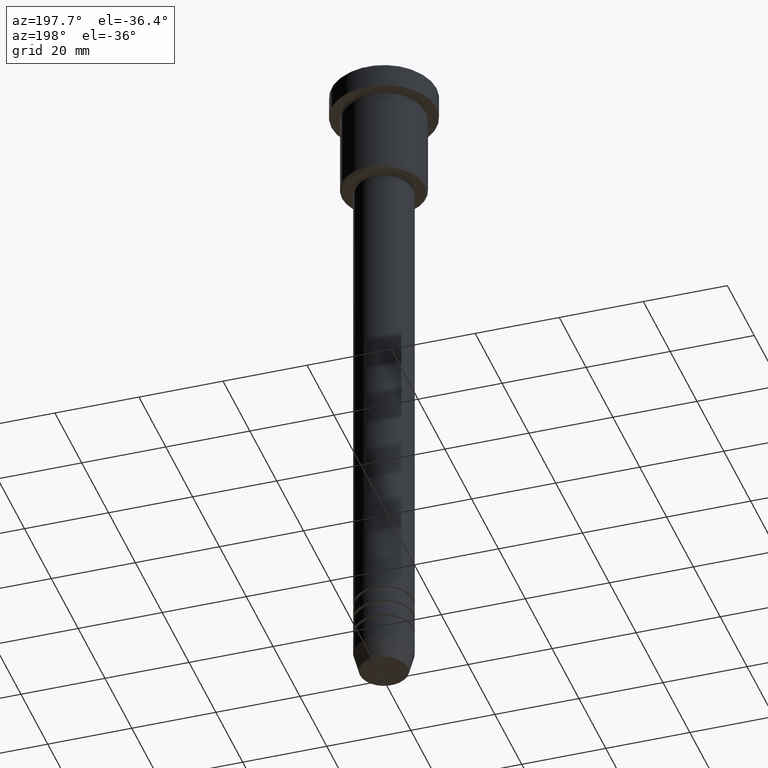
[diagram: clean part render]
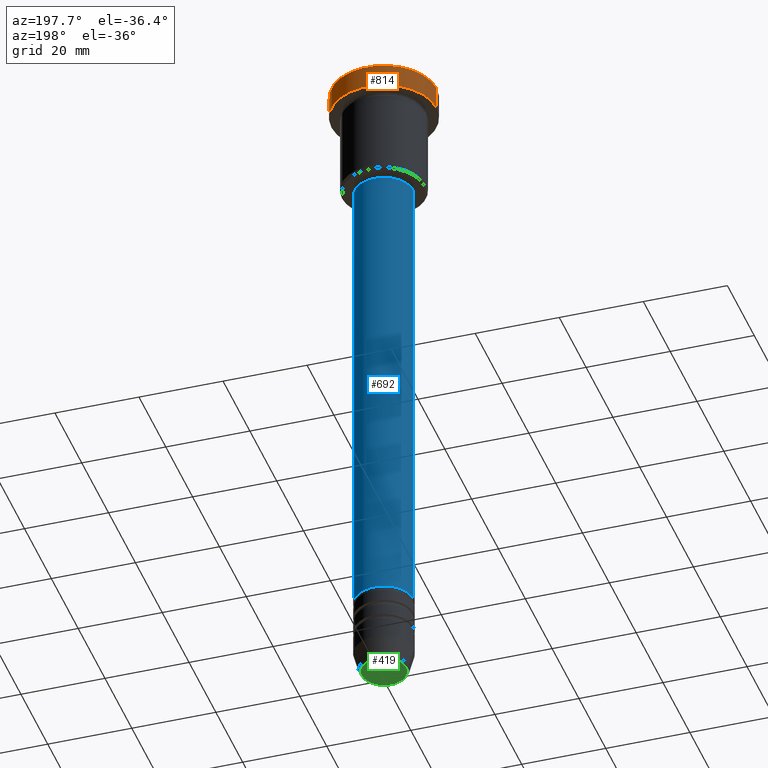
[diagram: same view with three faces highlighted in distinct colors, each labeled with its STEP entity id]
A machine part, auxiliary view with three faces highlighted in distinct colors.
Their STEP definitions:

[orange] entity #814 — the highlighted cylindrical surface (partial cylindrical patch) has radius 12.5 mm, axis along (-0, -0, 1).
#6 = VERTEX_POINT ( 'NONE', #38 ) ;
#33 = VERTEX_POINT ( 'NONE', #381 ) ;
#38 = CARTESIAN_POINT ( 'NONE',  ( -12.50000000000000000, 1.530808498934191521E-15, -0.4999999999999917843 ) ) ;
#48 = CARTESIAN_POINT ( 'NONE',  ( -12.50000000000000000, 1.530808498934191521E-15, 0.000000000000000000 ) ) ;
#209 = DIRECTION ( 'NONE',  ( 1.000000000000000000, 0.000000000000000000, 0.000000000000000000 ) ) ;
#212 = ORIENTED_EDGE ( 'NONE', *, *, #711, .T. ) ;
#236 = DIRECTION ( 'NONE',  ( -0.000000000000000000, -0.000000000000000000, 1.000000000000000000 ) ) ;
#249 = CARTESIAN_POINT ( 'NONE',  ( 12.50000000000000000, 0.000000000000000000, 0.000000000000000000 ) ) ;
#257 = DIRECTION ( 'NONE',  ( -0.000000000000000000, -0.000000000000000000, 1.000000000000000000 ) ) ;
#320 = EDGE_CURVE ( 'NONE', #602, #33, #736, .T. ) ;
#381 = CARTESIAN_POINT ( 'NONE',  ( -12.50000000000000000, 1.530808498934191521E-15, -5.999999999999996447 ) ) ;
#390 = EDGE_CURVE ( 'NONE', #602, #641, #915, .T. ) ;
#463 = DIRECTION ( 'NONE',  ( -0.000000000000000000, -0.000000000000000000, 1.000000000000000000 ) ) ;
#464 = CARTESIAN_POINT ( 'NONE',  ( 0.000000000000000000, 0.000000000000000000, 0.000000000000000000 ) ) ;
#545 = FACE_OUTER_BOUND ( 'NONE', #574, .T. ) ;
#561 = DIRECTION ( 'NONE',  ( -0.000000000000000000, -0.000000000000000000, 1.000000000000000000 ) ) ;
#574 = EDGE_LOOP ( 'NONE', ( #1091, #689, #212, #1068 ) ) ;
#602 = VERTEX_POINT ( 'NONE', #944 ) ;
#641 = VERTEX_POINT ( 'NONE', #1051 ) ;
#689 = ORIENTED_EDGE ( 'NONE', *, *, #1073, .T. ) ;
#697 = AXIS2_PLACEMENT_3D ( 'NONE', #464, #561, #904 ) ;
#711 = EDGE_CURVE ( 'NONE', #6, #641, #1097, .T. ) ;
#723 = DIRECTION ( 'NONE',  ( 1.000000000000000000, 0.000000000000000000, 0.000000000000000000 ) ) ;
#736 = CIRCLE ( 'NONE', #975, 12.50000000000000000 ) ;
#754 = VECTOR ( 'NONE', #463, 1000.000000000000000 ) ;
#814 = ADVANCED_FACE ( 'NONE', ( #545 ), #1105, .T. ) ;
#851 = CARTESIAN_POINT ( 'NONE',  ( 0.000000000000000000, 0.000000000000000000, -0.4999999999999917843 ) ) ;
#904 = DIRECTION ( 'NONE',  ( 1.000000000000000000, 0.000000000000000000, 0.000000000000000000 ) ) ;
#908 = CARTESIAN_POINT ( 'NONE',  ( 0.000000000000000000, 0.000000000000000000, -5.999999999999996447 ) ) ;
#915 = LINE ( 'NONE', #249, #754 ) ;
#944 = CARTESIAN_POINT ( 'NONE',  ( 12.50000000000000000, 0.000000000000000000, -5.999999999999996447 ) ) ;
#975 = AXIS2_PLACEMENT_3D ( 'NONE', #908, #257, #723 ) ;
#1051 = CARTESIAN_POINT ( 'NONE',  ( 12.50000000000000000, 0.000000000000000000, -0.4999999999999917843 ) ) ;
#1052 = AXIS2_PLACEMENT_3D ( 'NONE', #851, #1156, #209 ) ;
#1068 = ORIENTED_EDGE ( 'NONE', *, *, #390, .F. ) ;
#1073 = EDGE_CURVE ( 'NONE', #33, #6, #1164, .T. ) ;
#1091 = ORIENTED_EDGE ( 'NONE', *, *, #320, .T. ) ;
#1097 = CIRCLE ( 'NONE', #1052, 12.50000000000000000 ) ;
#1105 = CYLINDRICAL_SURFACE ( 'NONE', #697, 12.50000000000000000 ) ;
#1156 = DIRECTION ( 'NONE',  ( 0.000000000000000000, 0.000000000000000000, -1.000000000000000000 ) ) ;
#1164 = LINE ( 'NONE', #48, #1174 ) ;
#1174 = VECTOR ( 'NONE', #236, 1000.000000000000000 ) ;

[blue] entity #692 — the highlighted cylindrical surface (edge-blend (fillet) strip) has radius 7 mm, axis along (-0, -0, 1).
#89 = DIRECTION ( 'NONE',  ( -0.000000000000000000, -0.000000000000000000, 1.000000000000000000 ) ) ;
#91 = ORIENTED_EDGE ( 'NONE', *, *, #1090, .T. ) ;
#137 = CARTESIAN_POINT ( 'NONE',  ( 7.000000000000000888, 0.000000000000000000, -142.9999999999999147 ) ) ;
#149 = EDGE_CURVE ( 'NONE', #1037, #727, #1145, .T. ) ;
#177 = VECTOR ( 'NONE', #494, 1000.000000000000000 ) ;
#224 = ORIENTED_EDGE ( 'NONE', *, *, #149, .F. ) ;
#233 = DIRECTION ( 'NONE',  ( 1.000000000000000000, 0.000000000000000000, 0.000000000000000000 ) ) ;
#243 = CIRCLE ( 'NONE', #920, 7.000000000000000888 ) ;
#244 = CARTESIAN_POINT ( 'NONE',  ( 0.000000000000000000, 0.000000000000000000, -28.00000000000001776 ) ) ;
#255 = AXIS2_PLACEMENT_3D ( 'NONE', #969, #1153, #964 ) ;
#307 = CYLINDRICAL_SURFACE ( 'NONE', #598, 7.000000000000000888 ) ;
#365 = VECTOR ( 'NONE', #89, 1000.000000000000000 ) ;
#385 = VERTEX_POINT ( 'NONE', #642 ) ;
#494 = DIRECTION ( 'NONE',  ( -0.000000000000000000, -0.000000000000000000, 1.000000000000000000 ) ) ;
#598 = AXIS2_PLACEMENT_3D ( 'NONE', #1040, #1031, #233 ) ;
#599 = DIRECTION ( 'NONE',  ( -0.000000000000000000, -0.000000000000000000, 1.000000000000000000 ) ) ;
#619 = DIRECTION ( 'NONE',  ( 1.000000000000000000, 0.000000000000000000, 0.000000000000000000 ) ) ;
#642 = CARTESIAN_POINT ( 'NONE',  ( -7.000000000000000888, 8.572527594031474176E-16, -28.00000000000001776 ) ) ;
#666 = CARTESIAN_POINT ( 'NONE',  ( -7.000000000000000888, 8.572527594031474176E-16, -142.9999999999999147 ) ) ;
#677 = CARTESIAN_POINT ( 'NONE',  ( 7.000000000000000888, 0.000000000000000000, -28.00000000000001776 ) ) ;
#692 = ADVANCED_FACE ( 'NONE', ( #700 ), #307, .T. ) ;
#700 = FACE_OUTER_BOUND ( 'NONE', #907, .T. ) ;
#727 = VERTEX_POINT ( 'NONE', #677 ) ;
#775 = CIRCLE ( 'NONE', #255, 7.000000000000000888 ) ;
#785 = EDGE_CURVE ( 'NONE', #1007, #385, #812, .T. ) ;
#793 = CARTESIAN_POINT ( 'NONE',  ( 7.000000000000000888, 0.000000000000000000, 0.000000000000000000 ) ) ;
#809 = ORIENTED_EDGE ( 'NONE', *, *, #1159, .F. ) ;
#812 = LINE ( 'NONE', #1012, #365 ) ;
#823 = ORIENTED_EDGE ( 'NONE', *, *, #785, .T. ) ;
#907 = EDGE_LOOP ( 'NONE', ( #91, #823, #809, #224 ) ) ;
#920 = AXIS2_PLACEMENT_3D ( 'NONE', #244, #599, #619 ) ;
#964 = DIRECTION ( 'NONE',  ( 1.000000000000000000, 0.000000000000000000, 0.000000000000000000 ) ) ;
#969 = CARTESIAN_POINT ( 'NONE',  ( 0.000000000000000000, 0.000000000000000000, -142.9999999999999147 ) ) ;
#1007 = VERTEX_POINT ( 'NONE', #666 ) ;
#1012 = CARTESIAN_POINT ( 'NONE',  ( -7.000000000000000888, 8.572527594031474176E-16, 0.000000000000000000 ) ) ;
#1031 = DIRECTION ( 'NONE',  ( -0.000000000000000000, -0.000000000000000000, 1.000000000000000000 ) ) ;
#1037 = VERTEX_POINT ( 'NONE', #137 ) ;
#1040 = CARTESIAN_POINT ( 'NONE',  ( 0.000000000000000000, 0.000000000000000000, 0.000000000000000000 ) ) ;
#1090 = EDGE_CURVE ( 'NONE', #1037, #1007, #775, .T. ) ;
#1145 = LINE ( 'NONE', #793, #177 ) ;
#1153 = DIRECTION ( 'NONE',  ( -0.000000000000000000, -0.000000000000000000, 1.000000000000000000 ) ) ;
#1159 = EDGE_CURVE ( 'NONE', #727, #385, #243, .T. ) ;

[green] entity #419 — the highlighted planar face has unit normal (0, -0, 1).
#44 = CARTESIAN_POINT ( 'NONE',  ( 0.000000000000000000, 0.000000000000000000, -162.0000000000000284 ) ) ;
#79 = VERTEX_POINT ( 'NONE', #699 ) ;
#92 = DIRECTION ( 'NONE',  ( 1.000000000000000000, 0.000000000000000000, 0.000000000000000000 ) ) ;
#107 = VERTEX_POINT ( 'NONE', #523 ) ;
#199 = CARTESIAN_POINT ( 'NONE',  ( 0.000000000000000000, 0.000000000000000000, -162.0000000000000284 ) ) ;
#211 = DIRECTION ( 'NONE',  ( 0.000000000000000000, 0.000000000000000000, -1.000000000000000000 ) ) ;
#373 = CIRCLE ( 'NONE', #433, 5.276590543854905668 ) ;
#379 = CARTESIAN_POINT ( 'NONE',  ( 0.000000000000000000, 0.000000000000000000, -162.0000000000000284 ) ) ;
#399 = CIRCLE ( 'NONE', #1072, 5.276590543854905668 ) ;
#417 = DIRECTION ( 'NONE',  ( 0.000000000000000000, 0.000000000000000000, -1.000000000000000000 ) ) ;
#419 = ADVANCED_FACE ( 'NONE', ( #838 ), #748, .F. ) ;
#433 = AXIS2_PLACEMENT_3D ( 'NONE', #379, #211, #661 ) ;
#482 = AXIS2_PLACEMENT_3D ( 'NONE', #199, #753, #92 ) ;
#523 = CARTESIAN_POINT ( 'NONE',  ( -5.276590543854905668, 6.757689212787771832E-16, -162.0000000000000284 ) ) ;
#625 = ORIENTED_EDGE ( 'NONE', *, *, #949, .T. ) ;
#661 = DIRECTION ( 'NONE',  ( 1.000000000000000000, 0.000000000000000000, 0.000000000000000000 ) ) ;
#699 = CARTESIAN_POINT ( 'NONE',  ( 5.276590543854905668, 0.000000000000000000, -162.0000000000000284 ) ) ;
#748 = PLANE ( 'NONE',  #482 ) ;
#753 = DIRECTION ( 'NONE',  ( 0.000000000000000000, -0.000000000000000000, 1.000000000000000000 ) ) ;
#782 = DIRECTION ( 'NONE',  ( 1.000000000000000000, 0.000000000000000000, 0.000000000000000000 ) ) ;
#838 = FACE_OUTER_BOUND ( 'NONE', #993, .T. ) ;
#949 = EDGE_CURVE ( 'NONE', #79, #107, #373, .T. ) ;
#993 = EDGE_LOOP ( 'NONE', ( #625, #1026 ) ) ;
#1026 = ORIENTED_EDGE ( 'NONE', *, *, #1165, .T. ) ;
#1072 = AXIS2_PLACEMENT_3D ( 'NONE', #44, #417, #782 ) ;
#1165 = EDGE_CURVE ( 'NONE', #107, #79, #399, .T. ) ;